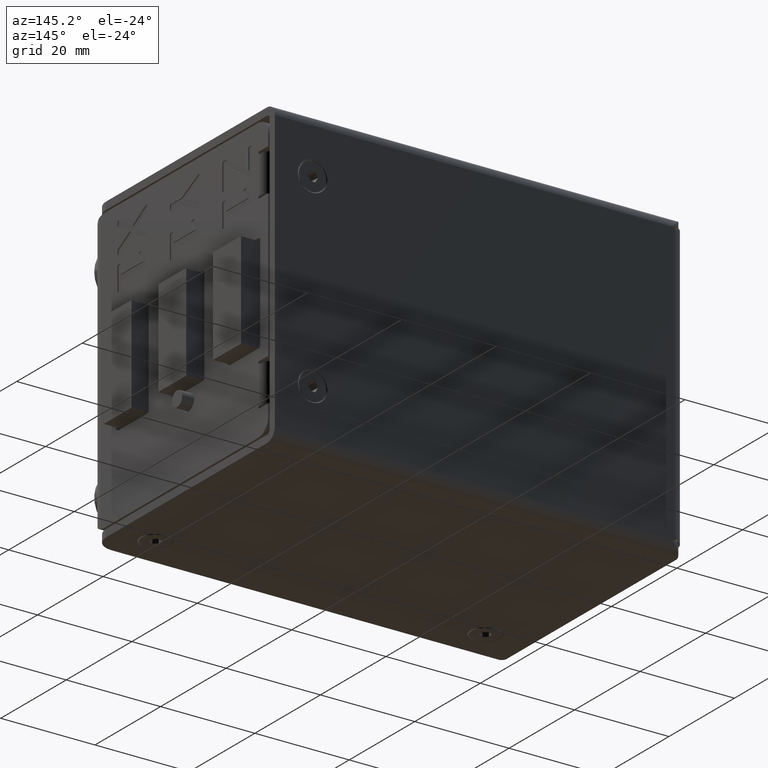
[diagram: clean part render]
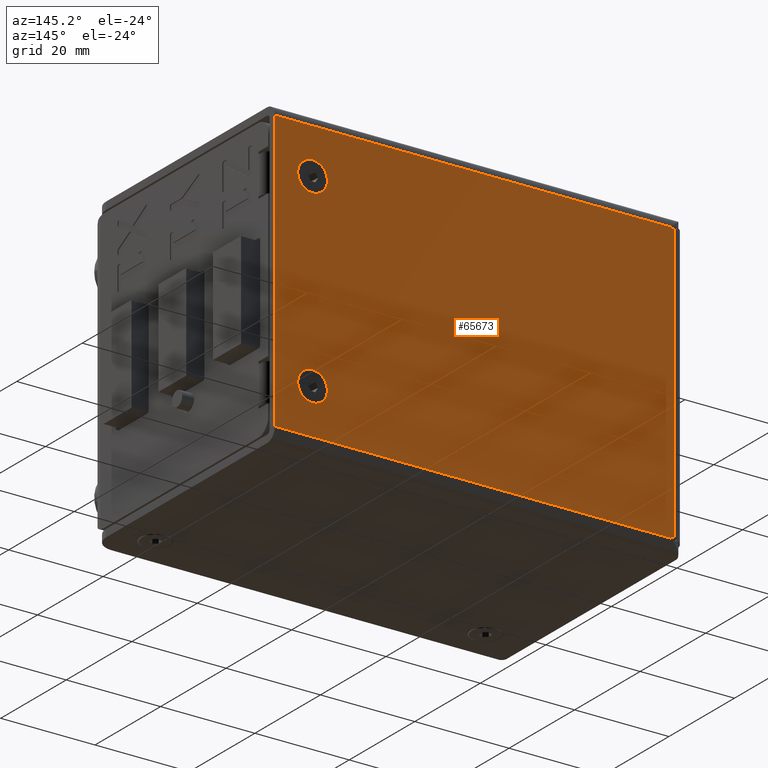
[diagram: same view with one face highlighted and labeled with its STEP entity id]
A machine part, auxiliary view. The second image highlights one B-rep face of the part: STEP entity #65673.
In plain terms, the highlighted planar face has unit normal (0, -1, 0).
Its self-contained STEP definition (entity closure, byte-faithful):
#273 = VERTEX_POINT ( 'NONE', #24861 ) ;
#346 = CIRCLE ( 'NONE', #16757, 3.149999999999999900 ) ;
#973 = DIRECTION ( 'NONE',  ( -0.0000000000000000000, 1.000000000000000000, -0.0000000000000000000 ) ) ;
#1462 = EDGE_LOOP ( 'NONE', ( #57702, #37010 ) ) ;
#2161 = VECTOR ( 'NONE', #3027, 1000.000000000000000 ) ;
#2223 = CIRCLE ( 'NONE', #23390, 3.149999999999999900 ) ;
#3026 = LINE ( 'NONE', #29561, #63470 ) ;
#3027 = DIRECTION ( 'NONE',  ( -0.0000000000000000000, -0.0000000000000000000, 1.000000000000000000 ) ) ;
#3992 = VERTEX_POINT ( 'NONE', #16415 ) ;
#6133 = DIRECTION ( 'NONE',  ( 0.0000000000000000000, 0.0000000000000000000, 1.000000000000000000 ) ) ;
#7695 = VECTOR ( 'NONE', #28464, 1000.000000000000000 ) ;
#7750 = DIRECTION ( 'NONE',  ( 1.000000000000000000, 0.0000000000000000000, 0.0000000000000000000 ) ) ;
#7842 = VERTEX_POINT ( 'NONE', #42871 ) ;
#9246 = DIRECTION ( 'NONE',  ( 0.0000000000000000000, 0.0000000000000000000, -1.000000000000000000 ) ) ;
#11086 = CARTESIAN_POINT ( 'NONE',  ( 38.69699846506239300, 42.07412546596318500, -19.99999999999999600 ) ) ;
#11427 = CARTESIAN_POINT ( 'NONE',  ( -37.96640153493761700, 42.07412546596318500, -29.66339999999999200 ) ) ;
#12241 = CARTESIAN_POINT ( 'NONE',  ( 38.69699846506239300, 42.07412546596318500, -19.99999999999999600 ) ) ;
#13332 = CARTESIAN_POINT ( 'NONE',  ( -37.30300153493760700, 42.07412546596318500, 29.91340000000000300 ) ) ;
#13894 = CARTESIAN_POINT ( 'NONE',  ( -40.30300153493761400, 42.07412546596318500, 29.41340000000000300 ) ) ;
#14018 = EDGE_CURVE ( 'NONE', #34488, #273, #38329, .T. ) ;
#14160 = CARTESIAN_POINT ( 'NONE',  ( 46.69699846506237200, 42.07412546596318500, 29.66340000000000600 ) ) ;
#15023 = VERTEX_POINT ( 'NONE', #14160 ) ;
#15957 = ORIENTED_EDGE ( 'NONE', *, *, #25750, .T. ) ;
#16415 = CARTESIAN_POINT ( 'NONE',  ( 46.69699846506236400, 42.07412546596318500, -29.66339999999999900 ) ) ;
#16757 = AXIS2_PLACEMENT_3D ( 'NONE', #11086, #973, #6133 ) ;
#16871 = LINE ( 'NONE', #18093, #7695 ) ;
#18093 = CARTESIAN_POINT ( 'NONE',  ( -40.30300153493762800, 42.07412546596318500, 29.66340000000000600 ) ) ;
#18109 = CARTESIAN_POINT ( 'NONE',  ( -37.96640153493761700, 42.07412546596318500, 29.41340000000000300 ) ) ;
#18578 = FACE_BOUND ( 'NONE', #44267, .T. ) ;
#19522 = VERTEX_POINT ( 'NONE', #69150 ) ;
#20475 = CARTESIAN_POINT ( 'NONE',  ( -37.30300153493760700, 42.07412546596318500, -29.66339999999999900 ) ) ;
#20968 = CARTESIAN_POINT ( 'NONE',  ( 38.69699846506240000, 42.07412546596318500, 20.00000000000000400 ) ) ;
#21182 = CARTESIAN_POINT ( 'NONE',  ( 3.196998465062383100, 42.07412546596318500, 3.469446951953614200E-015 ) ) ;
#21956 = DIRECTION ( 'NONE',  ( -0.0000000000000000000, -0.0000000000000000000, -1.000000000000000000 ) ) ;
#22186 = CARTESIAN_POINT ( 'NONE',  ( -37.30300153493760700, 42.07412546596318500, -29.91339999999999600 ) ) ;
#22453 = DIRECTION ( 'NONE',  ( -0.0000000000000000000, -0.0000000000000000000, 1.000000000000000000 ) ) ;
#22725 = EDGE_CURVE ( 'NONE', #29068, #45914, #51190, .T. ) ;
#23283 = LINE ( 'NONE', #13894, #29125 ) ;
#23390 = AXIS2_PLACEMENT_3D ( 'NONE', #12241, #49778, #28196 ) ;
#23464 = EDGE_CURVE ( 'NONE', #273, #34488, #47623, .T. ) ;
#24037 = DIRECTION ( 'NONE',  ( 1.000000000000000000, 0.0000000000000000000, 0.0000000000000000000 ) ) ;
#24861 = CARTESIAN_POINT ( 'NONE',  ( 38.69699846506240000, 42.07412546596318500, 23.15000000000000600 ) ) ;
#25750 = EDGE_CURVE ( 'NONE', #55352, #15023, #16871, .T. ) ;
#26343 = DIRECTION ( 'NONE',  ( 0.0000000000000000000, -1.000000000000000000, 0.0000000000000000000 ) ) ;
#26812 = PLANE ( 'NONE',  #43293 ) ;
#27075 = ORIENTED_EDGE ( 'NONE', *, *, #68317, .T. ) ;
#27392 = LINE ( 'NONE', #13332, #2161 ) ;
#27882 = DIRECTION ( 'NONE',  ( 0.0000000000000000000, 0.0000000000000000000, 1.000000000000000000 ) ) ;
#27912 = AXIS2_PLACEMENT_3D ( 'NONE', #20968, #63916, #41860 ) ;
#28196 = DIRECTION ( 'NONE',  ( 0.0000000000000000000, 0.0000000000000000000, 1.000000000000000000 ) ) ;
#28426 = ORIENTED_EDGE ( 'NONE', *, *, #29442, .T. ) ;
#28464 = DIRECTION ( 'NONE',  ( 1.000000000000000000, 0.0000000000000000000, 0.0000000000000000000 ) ) ;
#28710 = AXIS2_PLACEMENT_3D ( 'NONE', #55079, #43349, #27882 ) ;
#28743 = CARTESIAN_POINT ( 'NONE',  ( 46.69699846506237900, 42.07412546596318500, -29.66339999999999900 ) ) ;
#29068 = VERTEX_POINT ( 'NONE', #60526 ) ;
#29125 = VECTOR ( 'NONE', #24037, 1000.000000000000000 ) ;
#29442 = EDGE_CURVE ( 'NONE', #33718, #59117, #41019, .T. ) ;
#29561 = CARTESIAN_POINT ( 'NONE',  ( -40.30300153493761400, 42.07412546596318500, -29.41339999999999600 ) ) ;
#31995 = FACE_BOUND ( 'NONE', #1462, .T. ) ;
#33718 = VERTEX_POINT ( 'NONE', #54504 ) ;
#34160 = CARTESIAN_POINT ( 'NONE',  ( 38.69699846506240000, 42.07412546596318500, 16.85000000000000500 ) ) ;
#34368 = ORIENTED_EDGE ( 'NONE', *, *, #44577, .F. ) ;
#34383 = ORIENTED_EDGE ( 'NONE', *, *, #40763, .F. ) ;
#34488 = VERTEX_POINT ( 'NONE', #34160 ) ;
#35702 = ORIENTED_EDGE ( 'NONE', *, *, #45946, .T. ) ;
#36863 = VECTOR ( 'NONE', #21956, 1000.000000000000000 ) ;
#37010 = ORIENTED_EDGE ( 'NONE', *, *, #14018, .F. ) ;
#37166 = ORIENTED_EDGE ( 'NONE', *, *, #69192, .F. ) ;
#37563 = LINE ( 'NONE', #62985, #52729 ) ;
#37946 = ORIENTED_EDGE ( 'NONE', *, *, #41279, .T. ) ;
#38329 = CIRCLE ( 'NONE', #27912, 3.149999999999999900 ) ;
#40763 = EDGE_CURVE ( 'NONE', #67387, #7842, #2223, .T. ) ;
#41019 = LINE ( 'NONE', #11427, #67953 ) ;
#41279 = EDGE_CURVE ( 'NONE', #19522, #55352, #27392, .T. ) ;
#41860 = DIRECTION ( 'NONE',  ( 0.0000000000000000000, 0.0000000000000000000, 1.000000000000000000 ) ) ;
#42871 = CARTESIAN_POINT ( 'NONE',  ( 38.69699846506239300, 42.07412546596318500, -23.14999999999999900 ) ) ;
#43293 = AXIS2_PLACEMENT_3D ( 'NONE', #21182, #26343, #69591 ) ;
#43349 = DIRECTION ( 'NONE',  ( -0.0000000000000000000, 1.000000000000000000, -0.0000000000000000000 ) ) ;
#43740 = CARTESIAN_POINT ( 'NONE',  ( 38.69699846506239300, 42.07412546596318500, -16.84999999999999800 ) ) ;
#44267 = EDGE_LOOP ( 'NONE', ( #34383, #34368 ) ) ;
#44577 = EDGE_CURVE ( 'NONE', #7842, #67387, #346, .T. ) ;
#45914 = VERTEX_POINT ( 'NONE', #20475 ) ;
#45946 = EDGE_CURVE ( 'NONE', #15023, #3992, #37563, .T. ) ;
#47623 = CIRCLE ( 'NONE', #28710, 3.149999999999999900 ) ;
#49557 = VECTOR ( 'NONE', #66347, 1000.000000000000000 ) ;
#49778 = DIRECTION ( 'NONE',  ( -0.0000000000000000000, 1.000000000000000000, -0.0000000000000000000 ) ) ;
#51190 = LINE ( 'NONE', #22186, #36863 ) ;
#52729 = VECTOR ( 'NONE', #9246, 1000.000000000000000 ) ;
#53215 = CARTESIAN_POINT ( 'NONE',  ( -37.30300153493760700, 42.07412546596318500, 29.66340000000000600 ) ) ;
#53770 = ORIENTED_EDGE ( 'NONE', *, *, #22725, .F. ) ;
#54504 = CARTESIAN_POINT ( 'NONE',  ( -37.96640153493761700, 42.07412546596318500, -29.41339999999999600 ) ) ;
#55079 = CARTESIAN_POINT ( 'NONE',  ( 38.69699846506240000, 42.07412546596318500, 20.00000000000000400 ) ) ;
#55352 = VERTEX_POINT ( 'NONE', #53215 ) ;
#57642 = EDGE_LOOP ( 'NONE', ( #37946, #15957, #35702, #66236, #53770, #37166, #28426, #27075 ) ) ;
#57702 = ORIENTED_EDGE ( 'NONE', *, *, #23464, .F. ) ;
#59117 = VERTEX_POINT ( 'NONE', #18109 ) ;
#59744 = FACE_OUTER_BOUND ( 'NONE', #57642, .T. ) ;
#60526 = CARTESIAN_POINT ( 'NONE',  ( -37.30300153493760700, 42.07412546596318500, -29.41339999999999600 ) ) ;
#62985 = CARTESIAN_POINT ( 'NONE',  ( 46.69699846506237200, 42.07412546596318500, 30.40000000000000200 ) ) ;
#63045 = LINE ( 'NONE', #28743, #49557 ) ;
#63470 = VECTOR ( 'NONE', #7750, 1000.000000000000000 ) ;
#63916 = DIRECTION ( 'NONE',  ( -0.0000000000000000000, 1.000000000000000000, -0.0000000000000000000 ) ) ;
#63924 = EDGE_CURVE ( 'NONE', #3992, #45914, #63045, .T. ) ;
#65673 = ADVANCED_FACE ( 'NONE', ( #31995, #18578, #59744 ), #26812, .F. ) ;
#66236 = ORIENTED_EDGE ( 'NONE', *, *, #63924, .T. ) ;
#66347 = DIRECTION ( 'NONE',  ( -1.000000000000000000, 0.0000000000000000000, 0.0000000000000000000 ) ) ;
#67387 = VERTEX_POINT ( 'NONE', #43740 ) ;
#67953 = VECTOR ( 'NONE', #22453, 1000.000000000000000 ) ;
#68317 = EDGE_CURVE ( 'NONE', #59117, #19522, #23283, .T. ) ;
#69150 = CARTESIAN_POINT ( 'NONE',  ( -37.30300153493760700, 42.07412546596318500, 29.41340000000000300 ) ) ;
#69192 = EDGE_CURVE ( 'NONE', #33718, #29068, #3026, .T. ) ;
#69591 = DIRECTION ( 'NONE',  ( 0.0000000000000000000, -0.0000000000000000000, -1.000000000000000000 ) ) ;